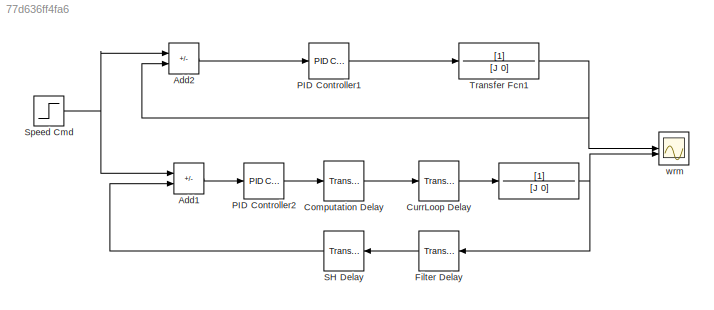
MODEL slx_77d636ff4fa6
KIND model
CONFIG AbsTol = auto
CONFIG EnableMultiTasking = off
CONFIG FixedStep = 0.00001
CONFIG MaxStep = auto
CONFIG MinStep = auto
CONFIG RelTol = 1e-3
CONFIG SampleTimeConstraint = Unconstrained
CONFIG SolverName = FixedStepAuto
CONFIG StartTime = 0.0
CONFIG StopTime = 0.2
BLOCK [TransferFcn]  
  Denominator = [J 0]
BLOCK [Sum] Add1
  IconShape = rectangular
  Inputs = +-
BLOCK [Sum] Add2
  IconShape = rectangular
  Inputs = +-
BLOCK [TransportDelay] Computation Delay
  DelayTime = Ts
BLOCK [TransportDelay] CurrLoop Delay
  DelayTime = 0.001
BLOCK [TransportDelay] Filter Delay
  DelayTime = 0.002
BLOCK [Reference] PID Controller1  REF=slpidlib/PID Controller
  LibrarySourceBlock = simulink/Continuous/PID Controller
  SourceBlock = slpidlib/PID Controller
  SourceType = PID 1dof
BLOCK [Reference] PID Controller2  REF=slpidlib/PID Controller
  LibrarySourceBlock = simulink/Continuous/PID Controller
  SourceBlock = slpidlib/PID Controller
  SourceType = PID 1dof
BLOCK [TransportDelay] SH Delay
  DelayTime = Ts/2
BLOCK [Step] Speed Cmd
  After = 100
  SampleTime = 0
  Time = 0
BLOCK [TransferFcn] Transfer Fcn1
  Denominator = [J 0]
BLOCK [Scope] wrm
  Floating = off
  NumInputPorts = 2
  ScopeSpecificationString = Simulink.scopes.TimeScopeBlockCfg('CurrentConfiguration', extmgr.ConfigurationSet(extmgr.Configuration('Core','General UI',true,'FigureColor',[1 1 1]),extmgr.Configuration('Core','Source UI',true),extmgr.Configuration('Sources','WiredSimulink',true,'DataLoggingVariableName','ScopeData2'),extmgr.Configuration('Visuals','Time Domain',true,'SerializedDisplays',{struct('MinYLimReal','-14.2071','MaxYLi...<+1711ch>
NET  :1 -> Filter Delay:1, wrm:2
LINE Add1:1 -> PID Controller2:1
LINE Add2:1 -> PID Controller1:1
LINE Computation Delay:1 -> CurrLoop Delay:1
LINE CurrLoop Delay:1 ->  :1
LINE Filter Delay:1 -> SH Delay:1
LINE PID Controller1:1 -> Transfer Fcn1:1
LINE PID Controller2:1 -> Computation Delay:1
LINE SH Delay:1 -> Add1:2
NET Speed Cmd:1 -> Add1:1, Add2:1
NET Transfer Fcn1:1 -> Add2:2, wrm:1
note: NET lines group one-source signal fan-out (src -> all destinations, sorted); 1:1 wires keep LINE
